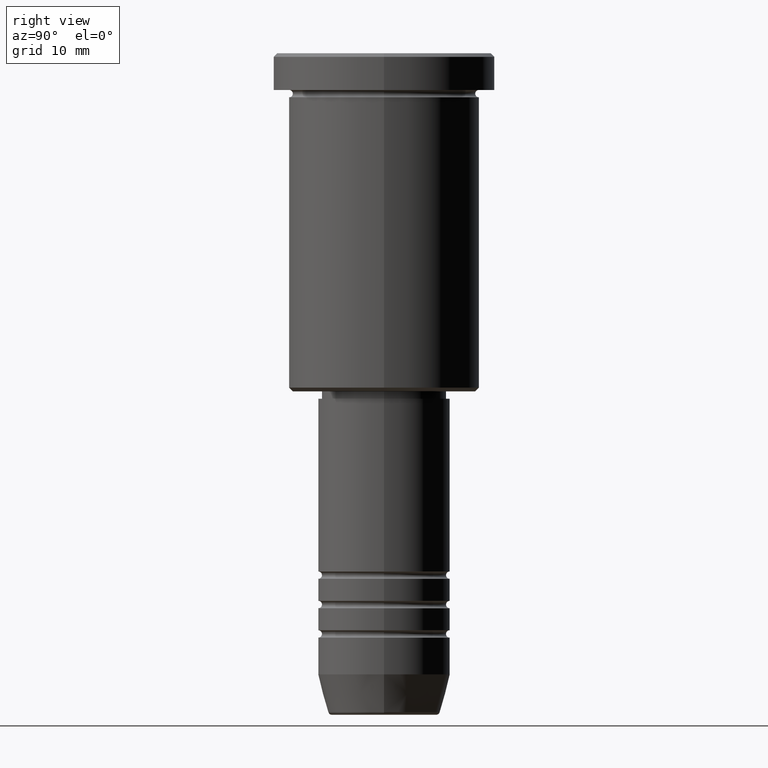
[diagram: clean part render]
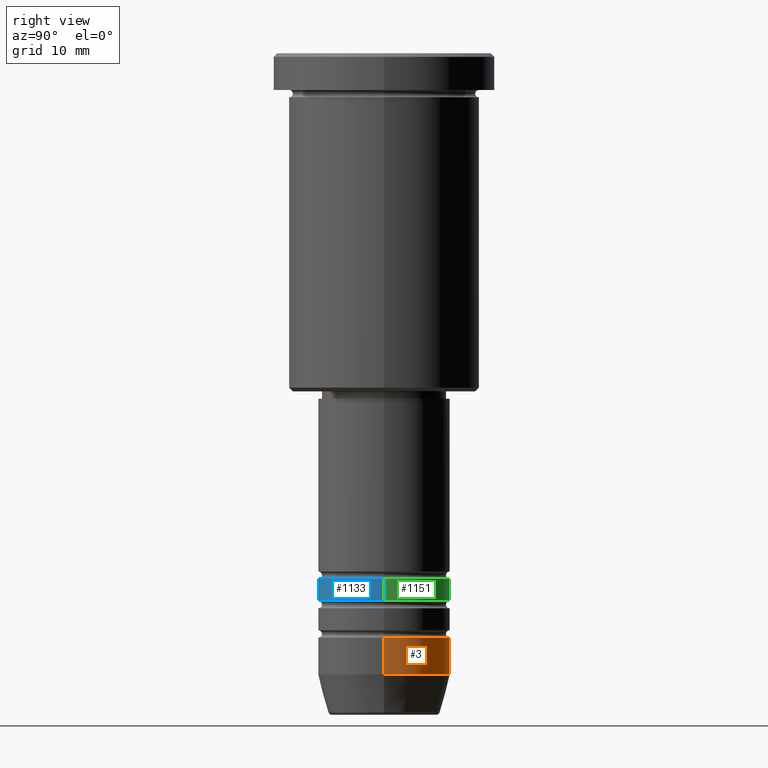
[diagram: same view with three faces highlighted in distinct colors, each labeled with its STEP entity id]
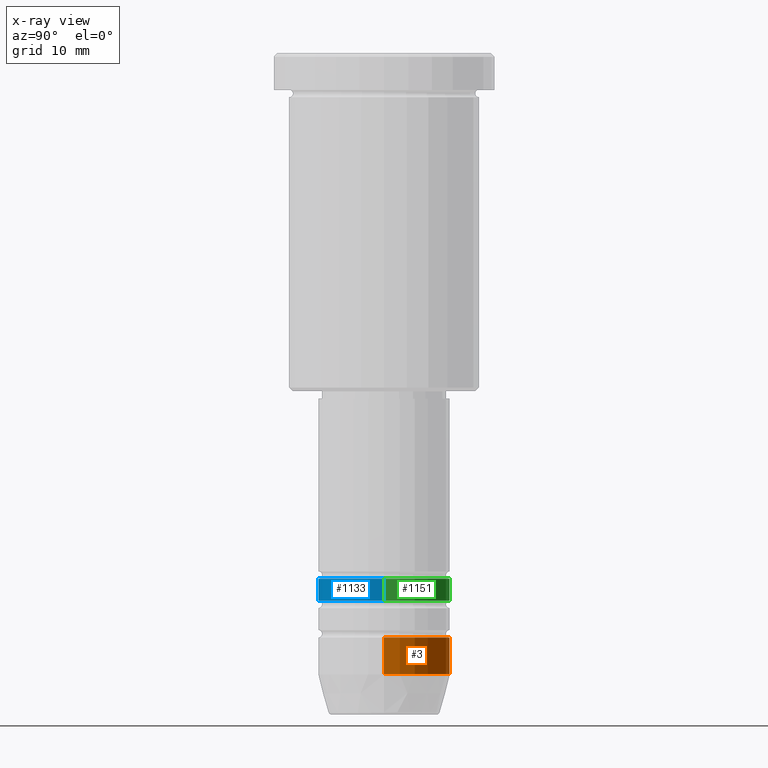
[diagram: x-ray of the same camera — body ghosted, the three highlighted faces saturated]
A machine part, right view with three faces highlighted in distinct colors.
The next image is the same camera in x-ray (body ghosted, the three faces saturated) — at least one of them is partly hidden behind the body in this view.
Their STEP definitions:

[orange] entity #3 — the highlighted cylindrical surface (partial cylindrical patch) has radius 9 mm, axis along (-0, -0, 1).
#3 = ADVANCED_FACE ( 'NONE', ( #673 ), #944, .T. ) ;
#39 = CARTESIAN_POINT ( 'NONE',  ( 9.000000000000001776, 0.000000000000000000, 0.000000000000000000 ) ) ;
#52 = CIRCLE ( 'NONE', #203, 9.000000000000000000 ) ;
#56 = DIRECTION ( 'NONE',  ( -0.000000000000000000, -0.000000000000000000, 1.000000000000000000 ) ) ;
#81 = VECTOR ( 'NONE', #108, 1000.000000000000000 ) ;
#91 = ORIENTED_EDGE ( 'NONE', *, *, #1111, .F. ) ;
#108 = DIRECTION ( 'NONE',  ( -0.000000000000000000, -0.000000000000000000, 1.000000000000000000 ) ) ;
#109 = DIRECTION ( 'NONE',  ( -0.000000000000000000, -0.000000000000000000, 1.000000000000000000 ) ) ;
#173 = DIRECTION ( 'NONE',  ( -0.000000000000000000, -0.000000000000000000, 1.000000000000000000 ) ) ;
#194 = CARTESIAN_POINT ( 'NONE',  ( -9.000000000000001776, 1.102182119232617911E-15, 0.000000000000000000 ) ) ;
#200 = ORIENTED_EDGE ( 'NONE', *, *, #446, .F. ) ;
#203 = AXIS2_PLACEMENT_3D ( 'NONE', #471, #173, #902 ) ;
#215 = EDGE_CURVE ( 'NONE', #290, #562, #739, .T. ) ;
#226 = DIRECTION ( 'NONE',  ( -0.000000000000000000, -0.000000000000000000, 1.000000000000000000 ) ) ;
#290 = VERTEX_POINT ( 'NONE', #385 ) ;
#313 = DIRECTION ( 'NONE',  ( 1.000000000000000000, 0.000000000000000000, 0.000000000000000000 ) ) ;
#329 = ORIENTED_EDGE ( 'NONE', *, *, #431, .T. ) ;
#332 = VECTOR ( 'NONE', #226, 1000.000000000000000 ) ;
#340 = ORIENTED_EDGE ( 'NONE', *, *, #215, .T. ) ;
#344 = VERTEX_POINT ( 'NONE', #827 ) ;
#385 = CARTESIAN_POINT ( 'NONE',  ( -9.000000000000001776, 1.102182119232617911E-15, -84.49999999999998579 ) ) ;
#422 = CARTESIAN_POINT ( 'NONE',  ( 0.000000000000000000, 0.000000000000000000, -84.49999999999998579 ) ) ;
#431 = EDGE_CURVE ( 'NONE', #344, #290, #1022, .T. ) ;
#440 = CARTESIAN_POINT ( 'NONE',  ( -9.000000000000000000, 1.102182119232617714E-15, -79.49999999999998579 ) ) ;
#446 = EDGE_CURVE ( 'NONE', #344, #806, #494, .T. ) ;
#467 = AXIS2_PLACEMENT_3D ( 'NONE', #488, #109, #748 ) ;
#471 = CARTESIAN_POINT ( 'NONE',  ( 0.000000000000000000, 0.000000000000000000, -79.49999999999998579 ) ) ;
#488 = CARTESIAN_POINT ( 'NONE',  ( 0.000000000000000000, 0.000000000000000000, 0.000000000000000000 ) ) ;
#494 = LINE ( 'NONE', #39, #332 ) ;
#558 = EDGE_LOOP ( 'NONE', ( #329, #340, #91, #200 ) ) ;
#562 = VERTEX_POINT ( 'NONE', #440 ) ;
#578 = CARTESIAN_POINT ( 'NONE',  ( 9.000000000000000000, 0.000000000000000000, -79.49999999999998579 ) ) ;
#673 = FACE_OUTER_BOUND ( 'NONE', #558, .T. ) ;
#739 = LINE ( 'NONE', #194, #81 ) ;
#748 = DIRECTION ( 'NONE',  ( 1.000000000000000000, 0.000000000000000000, 0.000000000000000000 ) ) ;
#806 = VERTEX_POINT ( 'NONE', #578 ) ;
#827 = CARTESIAN_POINT ( 'NONE',  ( 9.000000000000001776, 0.000000000000000000, -84.49999999999998579 ) ) ;
#902 = DIRECTION ( 'NONE',  ( 1.000000000000000000, 0.000000000000000000, 0.000000000000000000 ) ) ;
#944 = CYLINDRICAL_SURFACE ( 'NONE', #467, 9.000000000000001776 ) ;
#968 = AXIS2_PLACEMENT_3D ( 'NONE', #422, #56, #313 ) ;
#1022 = CIRCLE ( 'NONE', #968, 9.000000000000001776 ) ;
#1111 = EDGE_CURVE ( 'NONE', #806, #562, #52, .T. ) ;

[blue] entity #1133 — the highlighted cylindrical surface (partial cylindrical patch) has radius 9 mm, axis along (-0, -0, 1).
#62 = CARTESIAN_POINT ( 'NONE',  ( 9.000000000000001776, 0.000000000000000000, -74.49999999999998579 ) ) ;
#71 = LINE ( 'NONE', #712, #816 ) ;
#107 = CIRCLE ( 'NONE', #352, 9.000000000000000000 ) ;
#166 = VERTEX_POINT ( 'NONE', #62 ) ;
#210 = ORIENTED_EDGE ( 'NONE', *, *, #1076, .F. ) ;
#212 = VERTEX_POINT ( 'NONE', #466 ) ;
#322 = ORIENTED_EDGE ( 'NONE', *, *, #785, .T. ) ;
#345 = DIRECTION ( 'NONE',  ( 1.000000000000000000, 0.000000000000000000, 0.000000000000000000 ) ) ;
#352 = AXIS2_PLACEMENT_3D ( 'NONE', #1072, #1170, #345 ) ;
#369 = CIRCLE ( 'NONE', #624, 9.000000000000001776 ) ;
#448 = CARTESIAN_POINT ( 'NONE',  ( 0.000000000000000000, 0.000000000000000000, -74.49999999999998579 ) ) ;
#466 = CARTESIAN_POINT ( 'NONE',  ( -9.000000000000000000, 1.102182119232617714E-15, -71.49999999999998579 ) ) ;
#525 = DIRECTION ( 'NONE',  ( -0.000000000000000000, -0.000000000000000000, 1.000000000000000000 ) ) ;
#559 = FACE_OUTER_BOUND ( 'NONE', #991, .T. ) ;
#560 = CARTESIAN_POINT ( 'NONE',  ( 9.000000000000001776, 0.000000000000000000, 0.000000000000000000 ) ) ;
#581 = CARTESIAN_POINT ( 'NONE',  ( 9.000000000000000000, 0.000000000000000000, -71.49999999999998579 ) ) ;
#582 = EDGE_CURVE ( 'NONE', #700, #166, #369, .T. ) ;
#624 = AXIS2_PLACEMENT_3D ( 'NONE', #448, #1066, #719 ) ;
#638 = LINE ( 'NONE', #560, #1080 ) ;
#652 = DIRECTION ( 'NONE',  ( -0.000000000000000000, -0.000000000000000000, 1.000000000000000000 ) ) ;
#653 = CARTESIAN_POINT ( 'NONE',  ( -9.000000000000001776, 1.102182119232617911E-15, -74.49999999999998579 ) ) ;
#700 = VERTEX_POINT ( 'NONE', #653 ) ;
#712 = CARTESIAN_POINT ( 'NONE',  ( -9.000000000000001776, 1.102182119232617911E-15, 0.000000000000000000 ) ) ;
#719 = DIRECTION ( 'NONE',  ( 1.000000000000000000, 0.000000000000000000, 0.000000000000000000 ) ) ;
#785 = EDGE_CURVE ( 'NONE', #166, #842, #638, .T. ) ;
#816 = VECTOR ( 'NONE', #525, 1000.000000000000000 ) ;
#839 = DIRECTION ( 'NONE',  ( 1.000000000000000000, 0.000000000000000000, 0.000000000000000000 ) ) ;
#842 = VERTEX_POINT ( 'NONE', #581 ) ;
#913 = AXIS2_PLACEMENT_3D ( 'NONE', #1084, #652, #839 ) ;
#930 = ORIENTED_EDGE ( 'NONE', *, *, #1043, .F. ) ;
#991 = EDGE_LOOP ( 'NONE', ( #210, #1078, #322, #930 ) ) ;
#1002 = DIRECTION ( 'NONE',  ( -0.000000000000000000, -0.000000000000000000, 1.000000000000000000 ) ) ;
#1043 = EDGE_CURVE ( 'NONE', #212, #842, #107, .T. ) ;
#1066 = DIRECTION ( 'NONE',  ( -0.000000000000000000, -0.000000000000000000, 1.000000000000000000 ) ) ;
#1072 = CARTESIAN_POINT ( 'NONE',  ( 0.000000000000000000, 0.000000000000000000, -71.49999999999998579 ) ) ;
#1076 = EDGE_CURVE ( 'NONE', #700, #212, #71, .T. ) ;
#1078 = ORIENTED_EDGE ( 'NONE', *, *, #582, .T. ) ;
#1080 = VECTOR ( 'NONE', #1002, 1000.000000000000000 ) ;
#1084 = CARTESIAN_POINT ( 'NONE',  ( 0.000000000000000000, 0.000000000000000000, 0.000000000000000000 ) ) ;
#1088 = CYLINDRICAL_SURFACE ( 'NONE', #913, 9.000000000000001776 ) ;
#1133 = ADVANCED_FACE ( 'NONE', ( #559 ), #1088, .T. ) ;
#1170 = DIRECTION ( 'NONE',  ( -0.000000000000000000, -0.000000000000000000, 1.000000000000000000 ) ) ;

[green] entity #1151 — the highlighted cylindrical surface (partial cylindrical patch) has radius 9 mm, axis along (-0, -0, 1).
#62 = CARTESIAN_POINT ( 'NONE',  ( 9.000000000000001776, 0.000000000000000000, -74.49999999999998579 ) ) ;
#71 = LINE ( 'NONE', #712, #816 ) ;
#84 = CYLINDRICAL_SURFACE ( 'NONE', #855, 9.000000000000001776 ) ;
#118 = CARTESIAN_POINT ( 'NONE',  ( 0.000000000000000000, 0.000000000000000000, -74.49999999999998579 ) ) ;
#166 = VERTEX_POINT ( 'NONE', #62 ) ;
#212 = VERTEX_POINT ( 'NONE', #466 ) ;
#262 = DIRECTION ( 'NONE',  ( -0.000000000000000000, -0.000000000000000000, 1.000000000000000000 ) ) ;
#267 = CARTESIAN_POINT ( 'NONE',  ( 0.000000000000000000, 0.000000000000000000, 0.000000000000000000 ) ) ;
#268 = DIRECTION ( 'NONE',  ( -0.000000000000000000, -0.000000000000000000, 1.000000000000000000 ) ) ;
#287 = CIRCLE ( 'NONE', #1042, 9.000000000000001776 ) ;
#362 = ORIENTED_EDGE ( 'NONE', *, *, #1076, .T. ) ;
#376 = EDGE_LOOP ( 'NONE', ( #820, #362, #1175, #977 ) ) ;
#391 = CIRCLE ( 'NONE', #644, 9.000000000000000000 ) ;
#407 = EDGE_CURVE ( 'NONE', #166, #700, #287, .T. ) ;
#466 = CARTESIAN_POINT ( 'NONE',  ( -9.000000000000000000, 1.102182119232617714E-15, -71.49999999999998579 ) ) ;
#512 = DIRECTION ( 'NONE',  ( -0.000000000000000000, -0.000000000000000000, 1.000000000000000000 ) ) ;
#525 = DIRECTION ( 'NONE',  ( -0.000000000000000000, -0.000000000000000000, 1.000000000000000000 ) ) ;
#560 = CARTESIAN_POINT ( 'NONE',  ( 9.000000000000001776, 0.000000000000000000, 0.000000000000000000 ) ) ;
#581 = CARTESIAN_POINT ( 'NONE',  ( 9.000000000000000000, 0.000000000000000000, -71.49999999999998579 ) ) ;
#637 = DIRECTION ( 'NONE',  ( 1.000000000000000000, 0.000000000000000000, 0.000000000000000000 ) ) ;
#638 = LINE ( 'NONE', #560, #1080 ) ;
#644 = AXIS2_PLACEMENT_3D ( 'NONE', #1021, #268, #840 ) ;
#653 = CARTESIAN_POINT ( 'NONE',  ( -9.000000000000001776, 1.102182119232617911E-15, -74.49999999999998579 ) ) ;
#700 = VERTEX_POINT ( 'NONE', #653 ) ;
#712 = CARTESIAN_POINT ( 'NONE',  ( -9.000000000000001776, 1.102182119232617911E-15, 0.000000000000000000 ) ) ;
#738 = EDGE_CURVE ( 'NONE', #842, #212, #391, .T. ) ;
#785 = EDGE_CURVE ( 'NONE', #166, #842, #638, .T. ) ;
#816 = VECTOR ( 'NONE', #525, 1000.000000000000000 ) ;
#820 = ORIENTED_EDGE ( 'NONE', *, *, #407, .T. ) ;
#840 = DIRECTION ( 'NONE',  ( 1.000000000000000000, 0.000000000000000000, 0.000000000000000000 ) ) ;
#842 = VERTEX_POINT ( 'NONE', #581 ) ;
#855 = AXIS2_PLACEMENT_3D ( 'NONE', #267, #262, #637 ) ;
#871 = DIRECTION ( 'NONE',  ( 1.000000000000000000, 0.000000000000000000, 0.000000000000000000 ) ) ;
#909 = FACE_OUTER_BOUND ( 'NONE', #376, .T. ) ;
#977 = ORIENTED_EDGE ( 'NONE', *, *, #785, .F. ) ;
#1002 = DIRECTION ( 'NONE',  ( -0.000000000000000000, -0.000000000000000000, 1.000000000000000000 ) ) ;
#1021 = CARTESIAN_POINT ( 'NONE',  ( 0.000000000000000000, 0.000000000000000000, -71.49999999999998579 ) ) ;
#1042 = AXIS2_PLACEMENT_3D ( 'NONE', #118, #512, #871 ) ;
#1076 = EDGE_CURVE ( 'NONE', #700, #212, #71, .T. ) ;
#1080 = VECTOR ( 'NONE', #1002, 1000.000000000000000 ) ;
#1151 = ADVANCED_FACE ( 'NONE', ( #909 ), #84, .T. ) ;
#1175 = ORIENTED_EDGE ( 'NONE', *, *, #738, .F. ) ;